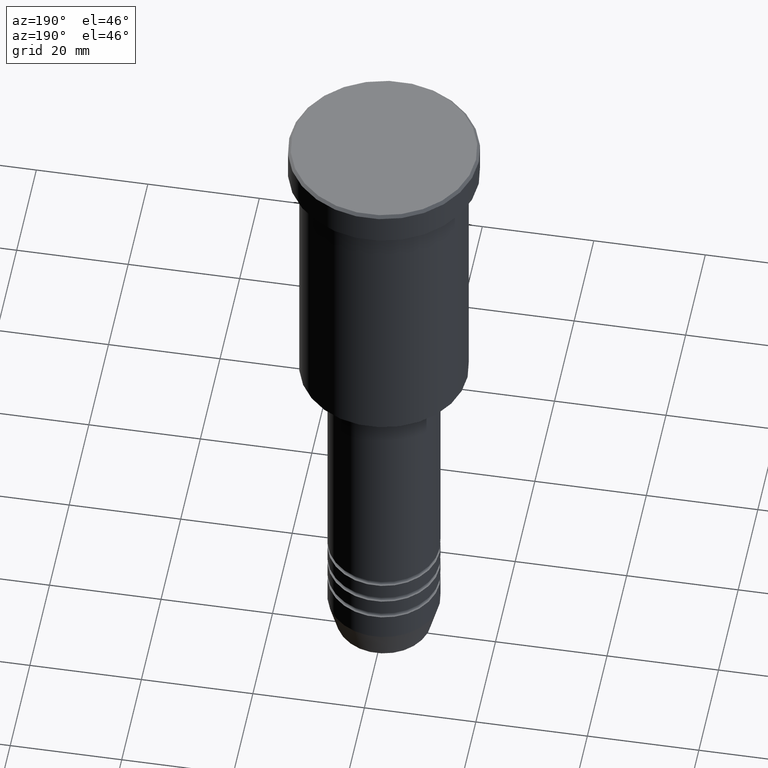
[diagram: clean part render]
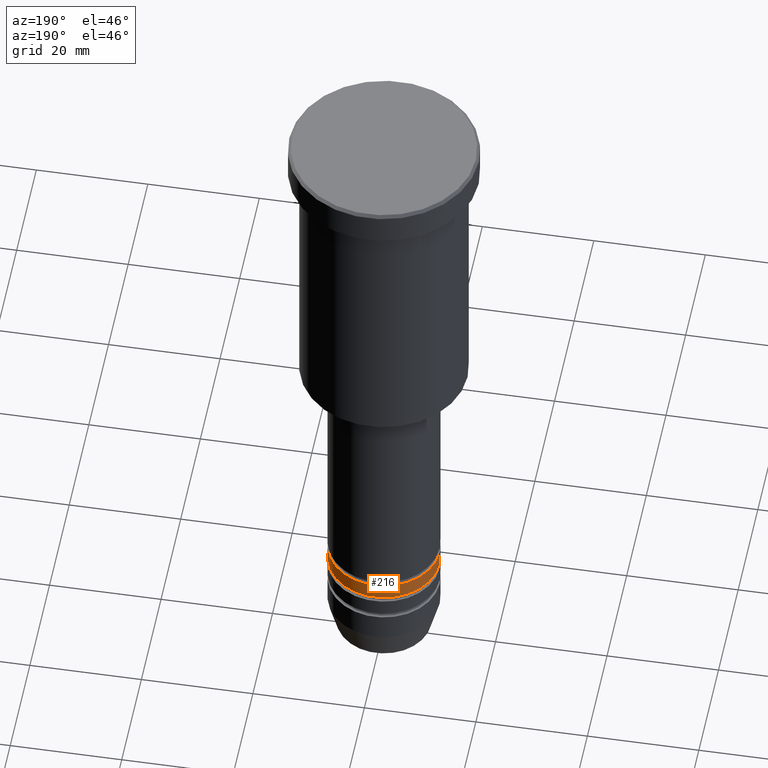
[diagram: same view with one face highlighted and labeled with its STEP entity id]
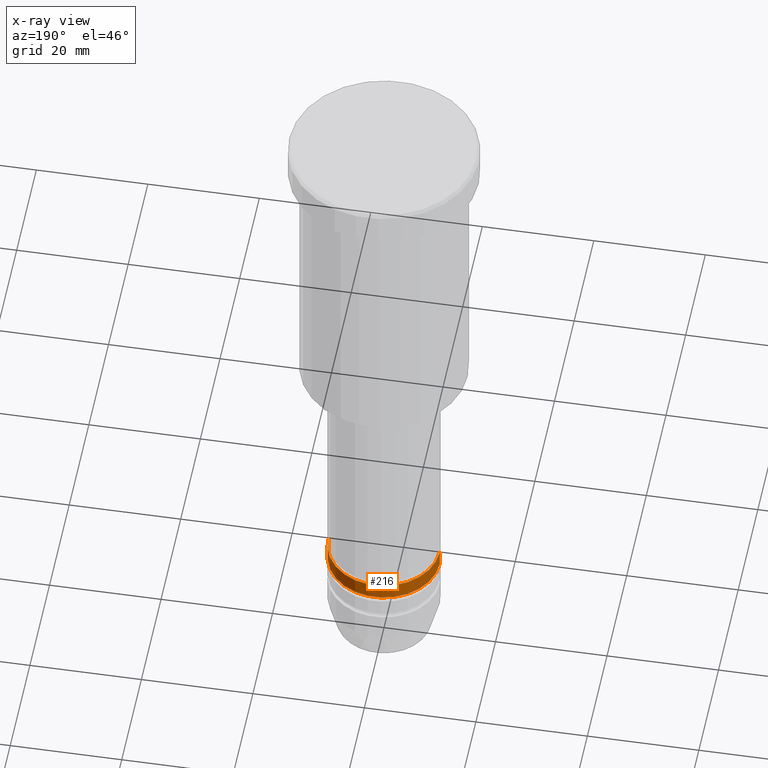
[diagram: x-ray of the same camera — body ghosted, the highlighted face saturated]
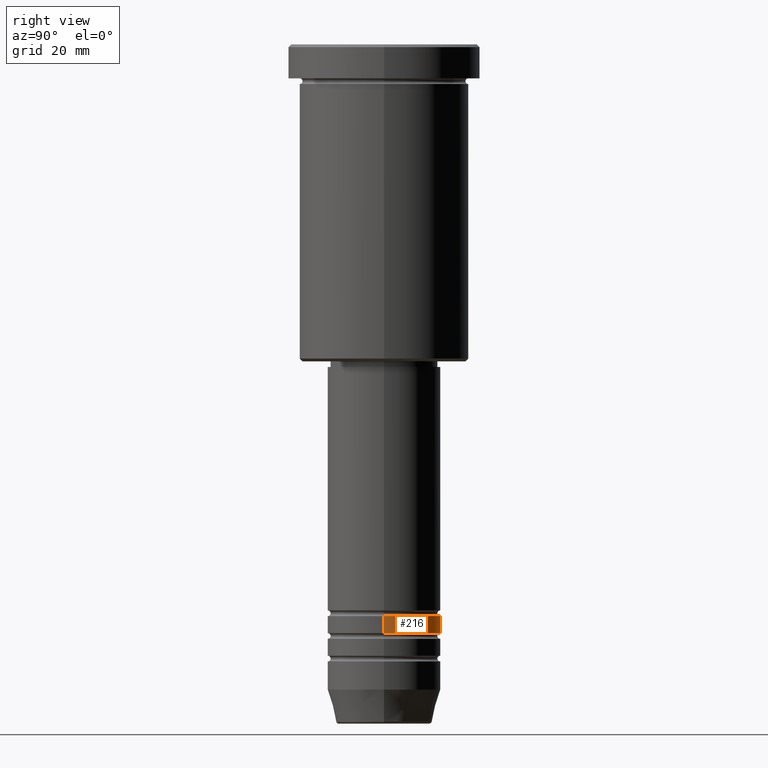
[diagram: same view with one face highlighted and labeled with its STEP entity id]
A machine part, auxiliary view. The second image highlights one B-rep face of the part: STEP entity #216.
The next image is the same camera in x-ray: the body ghosted, the highlighted face saturated — about 0% of this face is hidden behind the body in this view.
A second angle (right view) of the same face is appended — the face is thin or edge-on in the first view.
In plain terms, the highlighted cylindrical surface (partial cylindrical patch) has radius 10 mm, axis along (-0, -0, 1).
Its self-contained STEP definition (entity closure, byte-faithful):
#27 = CIRCLE ( 'NONE', #1110, 10.00000000000000000 ) ;
#49 = ORIENTED_EDGE ( 'NONE', *, *, #643, .F. ) ;
#77 = VERTEX_POINT ( 'NONE', #836 ) ;
#105 = DIRECTION ( 'NONE',  ( -0.000000000000000000, -0.000000000000000000, 1.000000000000000000 ) ) ;
#122 = EDGE_CURVE ( 'NONE', #1102, #1040, #1112, .T. ) ;
#134 = ORIENTED_EDGE ( 'NONE', *, *, #715, .T. ) ;
#158 = CARTESIAN_POINT ( 'NONE',  ( 0.000000000000000000, 0.000000000000000000, 0.000000000000000000 ) ) ;
#216 = ADVANCED_FACE ( 'NONE', ( #990 ), #914, .T. ) ;
#219 = LINE ( 'NONE', #582, #959 ) ;
#244 = ORIENTED_EDGE ( 'NONE', *, *, #603, .T. ) ;
#255 = ORIENTED_EDGE ( 'NONE', *, *, #122, .F. ) ;
#333 = VERTEX_POINT ( 'NONE', #972 ) ;
#450 = EDGE_LOOP ( 'NONE', ( #244, #134, #49, #255 ) ) ;
#487 = CARTESIAN_POINT ( 'NONE',  ( 10.00000000000000178, 0.000000000000000000, -103.9999999999999858 ) ) ;
#531 = DIRECTION ( 'NONE',  ( -0.000000000000000000, -0.000000000000000000, 1.000000000000000000 ) ) ;
#554 = DIRECTION ( 'NONE',  ( 1.000000000000000000, 0.000000000000000000, 0.000000000000000000 ) ) ;
#582 = CARTESIAN_POINT ( 'NONE',  ( -10.00000000000000178, 1.224646799147353454E-15, 0.000000000000000000 ) ) ;
#603 = EDGE_CURVE ( 'NONE', #1102, #333, #1091, .T. ) ;
#643 = EDGE_CURVE ( 'NONE', #1040, #77, #27, .T. ) ;
#644 = CARTESIAN_POINT ( 'NONE',  ( 10.00000000000000000, 0.000000000000000000, -100.9999999999999716 ) ) ;
#661 = CARTESIAN_POINT ( 'NONE',  ( 0.000000000000000000, 0.000000000000000000, -103.9999999999999858 ) ) ;
#669 = AXIS2_PLACEMENT_3D ( 'NONE', #661, #105, #839 ) ;
#715 = EDGE_CURVE ( 'NONE', #333, #77, #219, .T. ) ;
#836 = CARTESIAN_POINT ( 'NONE',  ( -10.00000000000000000, 1.224646799147353256E-15, -100.9999999999999716 ) ) ;
#839 = DIRECTION ( 'NONE',  ( 1.000000000000000000, 0.000000000000000000, 0.000000000000000000 ) ) ;
#844 = AXIS2_PLACEMENT_3D ( 'NONE', #158, #531, #1154 ) ;
#914 = CYLINDRICAL_SURFACE ( 'NONE', #844, 10.00000000000000178 ) ;
#959 = VECTOR ( 'NONE', #1141, 1000.000000000000000 ) ;
#972 = CARTESIAN_POINT ( 'NONE',  ( -10.00000000000000178, 1.224646799147353454E-15, -103.9999999999999858 ) ) ;
#990 = FACE_OUTER_BOUND ( 'NONE', #450, .T. ) ;
#1009 = DIRECTION ( 'NONE',  ( -0.000000000000000000, -0.000000000000000000, 1.000000000000000000 ) ) ;
#1013 = CARTESIAN_POINT ( 'NONE',  ( 0.000000000000000000, 0.000000000000000000, -100.9999999999999716 ) ) ;
#1025 = CARTESIAN_POINT ( 'NONE',  ( 10.00000000000000178, 0.000000000000000000, 0.000000000000000000 ) ) ;
#1040 = VERTEX_POINT ( 'NONE', #644 ) ;
#1091 = CIRCLE ( 'NONE', #669, 10.00000000000000178 ) ;
#1099 = DIRECTION ( 'NONE',  ( -0.000000000000000000, -0.000000000000000000, 1.000000000000000000 ) ) ;
#1102 = VERTEX_POINT ( 'NONE', #487 ) ;
#1110 = AXIS2_PLACEMENT_3D ( 'NONE', #1013, #1099, #554 ) ;
#1112 = LINE ( 'NONE', #1025, #1168 ) ;
#1141 = DIRECTION ( 'NONE',  ( -0.000000000000000000, -0.000000000000000000, 1.000000000000000000 ) ) ;
#1154 = DIRECTION ( 'NONE',  ( 1.000000000000000000, 0.000000000000000000, 0.000000000000000000 ) ) ;
#1168 = VECTOR ( 'NONE', #1009, 1000.000000000000000 ) ;